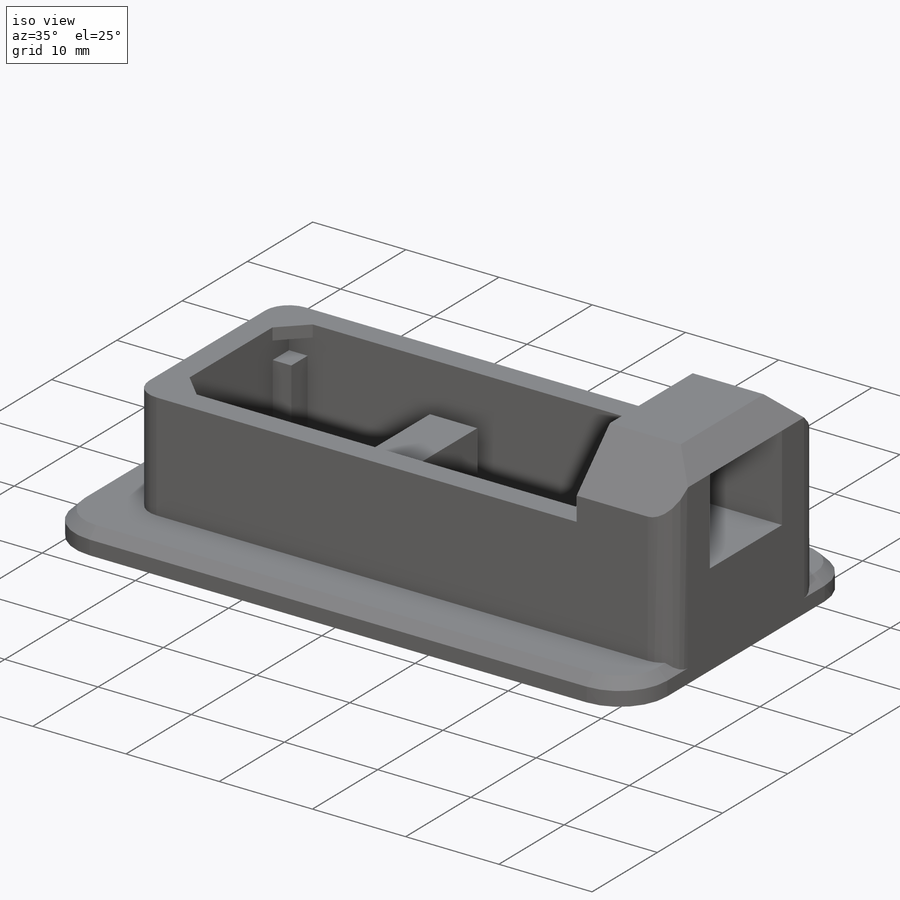
[diagram: iso view]
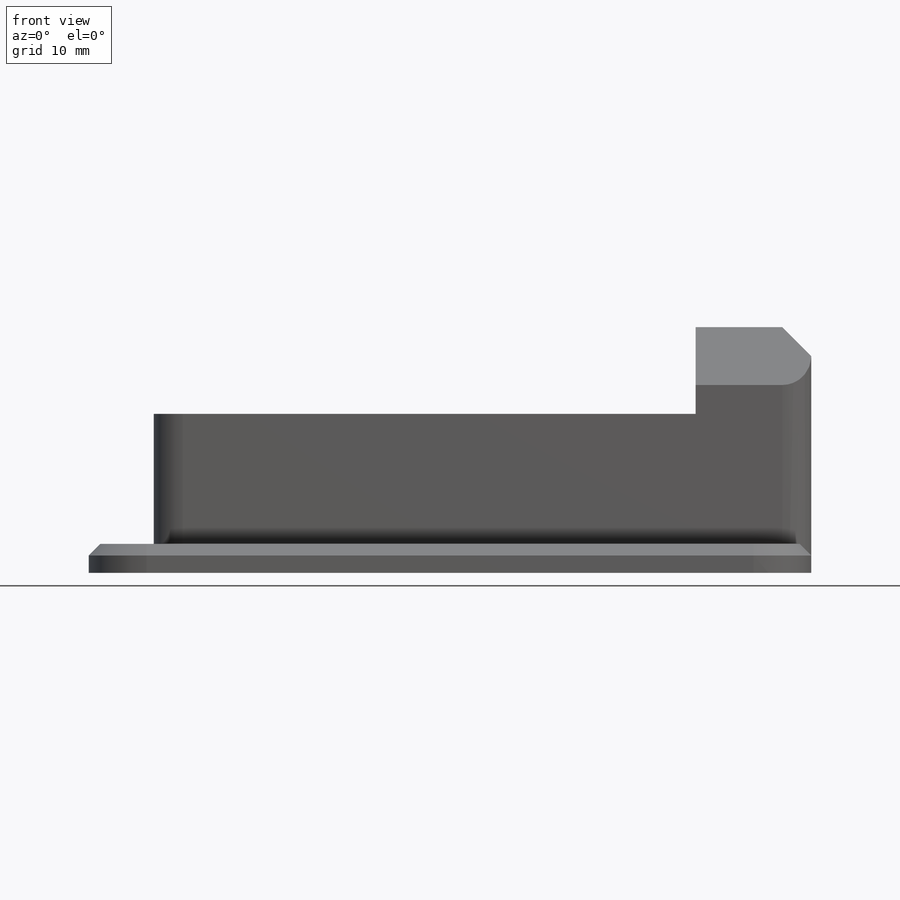
[diagram: front view]
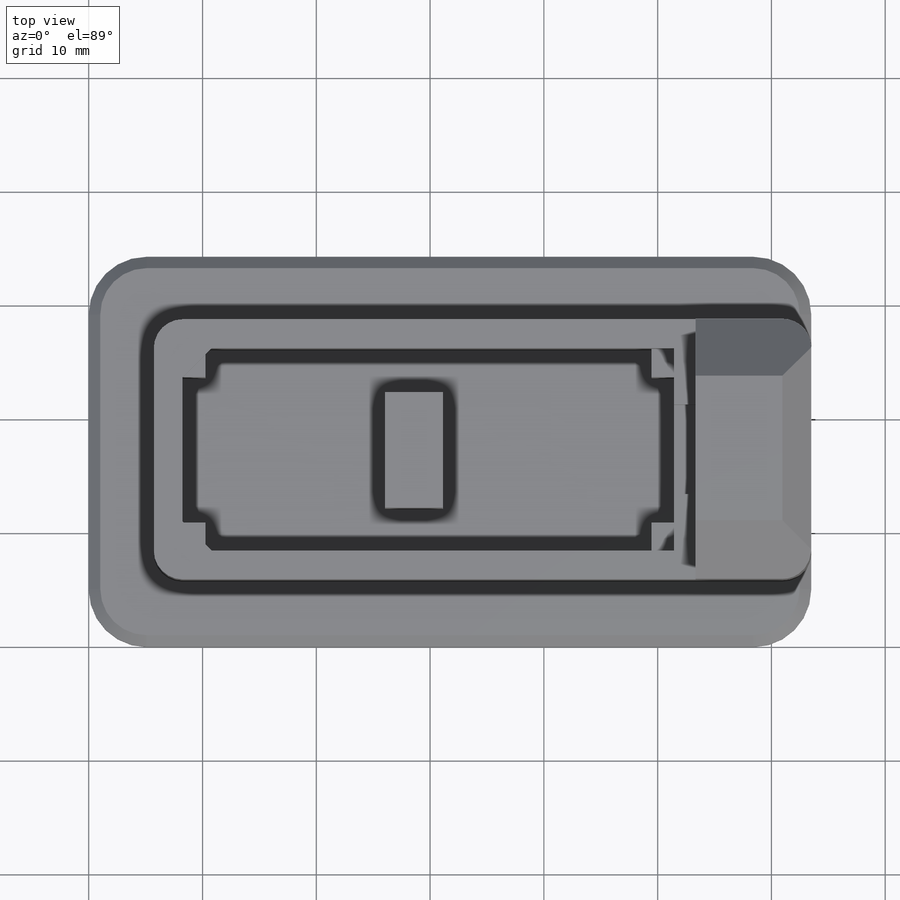
[diagram: top view]
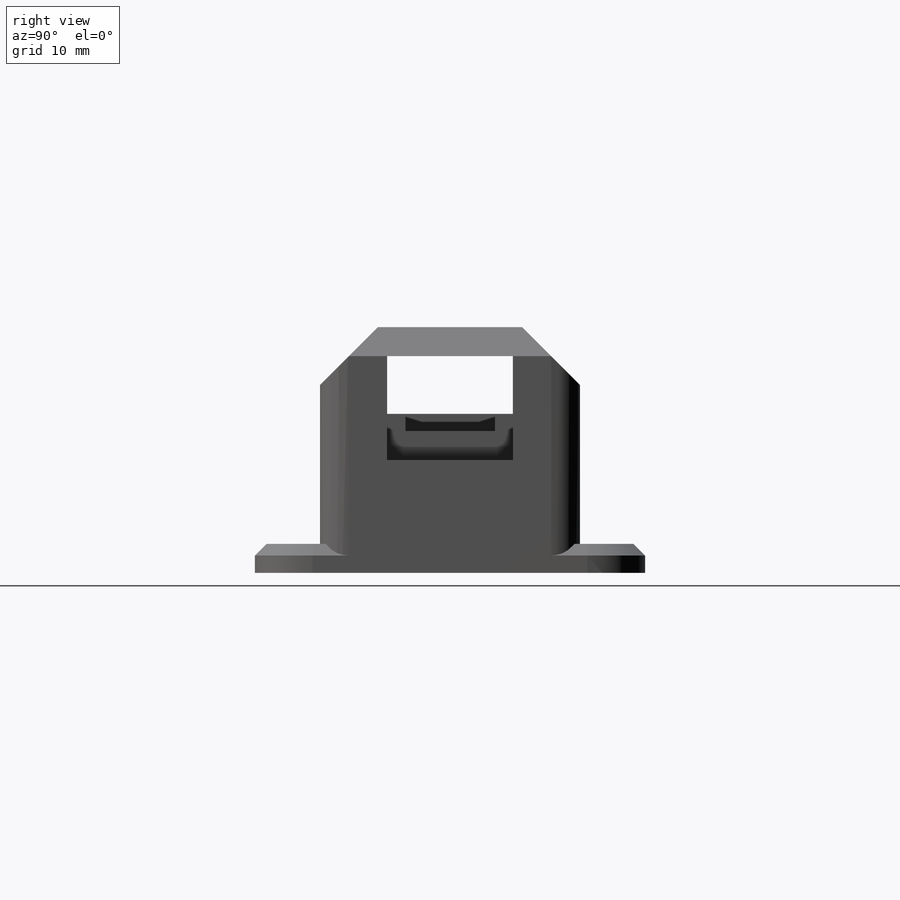
[diagram: right view]
SOLIDWORKS PART (.sldprt)
format: sldprt  version: not decoded by parser v0  size: 448,512 bytes
history: native  units: mm
features: sketch x7, extrude x5, chamfer x3, cut_extrude x2, fillet x2, material x1 (+12 scaffold rows collapsed)
feature tree (32):
  scaffold x12  (default folders/planes/origin — collapsed)
  material  "Material <not specified>"
  sketch  "Sketch1"  dims[D1=63.5mm D2=34.29mm]
  extrude  "Boss-Extrude1"  Depth=2.54mm
  sketch  "Sketch2"  dims[D1=17.78mm D2=43.18mm D3=8.255mm D4=8.255mm D5=5.715mm D6=22.86mm D7=5.715mm D8=57.785mm D9=5.08mm D10=25.4mm D11=10.16mm D12=12.065mm]
  extrude  "Boss-Extrude2"  Depth=11.43mm
  sketch  "Sketch3"  dims[D1=2.0mm D2=2.5mm D3=2.0mm D4=2.5mm D5=2.5mm D6=2.5mm D7=2.0mm D8=2.0mm D9=5.08mm D10=25.4mm D11=12.065mm D12=10.16mm D13=8.255mm D14=8.255mm D15=8.255mm D16=8.255mm D17=12.065mm D18=12.065mm D19=8.255mm D20=8.255mm]
  extrude  "Boss-Extrude3"  Depth=8.255mm
  sketch  "Sketch4"  dims[D1=2.54mm D2=2.54mm D3=2.54mm D4=2.54mm]
  extrude  "Boss-Extrude4"  Depth=1.27mm
  sketch  "Sketch5"  dims[D1=10.16mm]
  extrude  "Boss-Extrude5"  Depth=7.62mm
  sketch  "Sketch6"  dims[D1=7.874mm D2=4.064mm D3=9.906mm D4=7.493mm]
  cut_extrude  "Cut-Extrude1"  [1 undecoded]
  sketch  "Sketch7"  dims[c1.D1=9.144mm c1.D2=11.049mm c1.D3=4.572mm c1.D4=5.5245mm c2.D3=4.572mm]
  cut_extrude  "Cut-Extrude2"  Depth=10.16mm
  chamfer  "Chamfer1"  Distance=5.08mm Angle=45deg
  fillet  "Fillet1"  Radius=5.08mm
  fillet  "Fillet2"  Radius=2.54mm
  chamfer  "Chamfer2"  Distance=2.54mm Angle=45deg
  chamfer  "Chamfer3"  Distance=1.016mm Angle=45deg
decode coverage: 18 of 19 modeling features carry decoded parameters
note: 1 parameter value undecoded
note: suppression state not decoded; provenance and decode notes live in map.json
